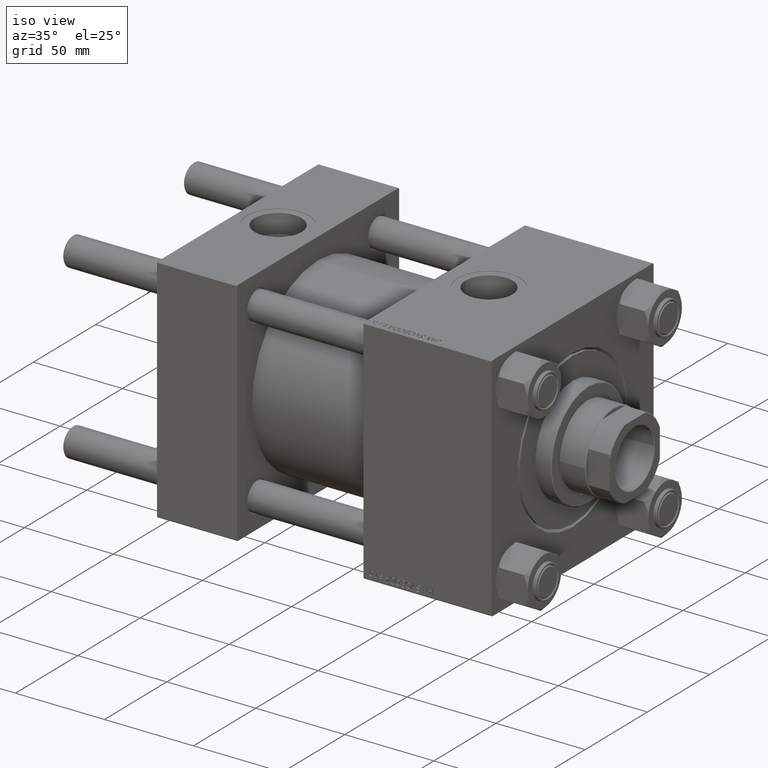
[diagram: clean part render]
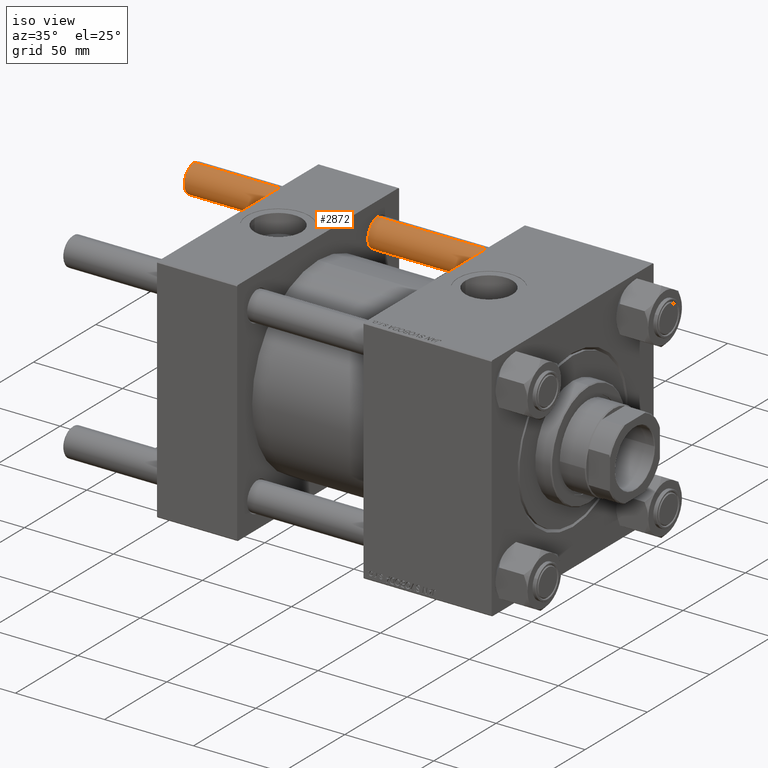
[diagram: same view with one face highlighted and labeled with its STEP entity id]
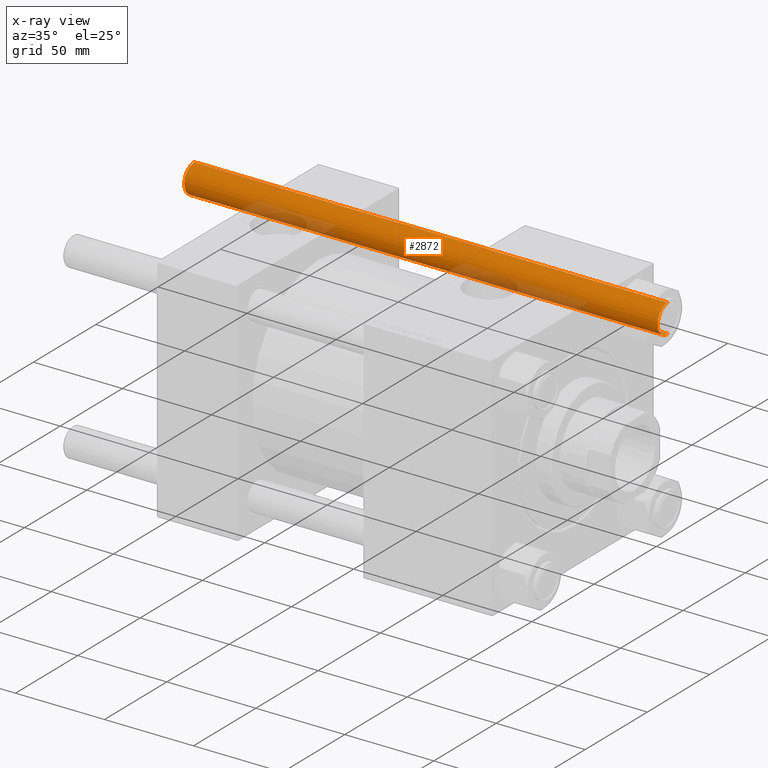
[diagram: x-ray of the same camera — body ghosted, the highlighted face saturated]
A machine part, iso view. The second image highlights one B-rep face of the part: STEP entity #2872.
The next image is the same camera in x-ray: the body ghosted, the highlighted face saturated — about 17% of this face is hidden behind the body in this view.
In plain terms, the highlighted cylindrical surface (edge-blend (fillet) strip) has radius 8 mm, axis along (-1, -0, -0).
Its self-contained STEP definition (entity closure, byte-faithful):
#1623 = CARTESIAN_POINT ( 'NONE',  ( 0.000000000000000000, 0.000000000000000000, 266.5000000000000568 ) ) ;
#1893 = VERTEX_POINT ( 'NONE', #17741 ) ;
#1976 = CARTESIAN_POINT ( 'NONE',  ( 0.000000000000000000, 0.000000000000000000, 267.0000000000000000 ) ) ;
#2479 = FACE_OUTER_BOUND ( 'NONE', #10780, .T. ) ;
#2661 = DIRECTION ( 'NONE',  ( -0.000000000000000000, -0.000000000000000000, -1.000000000000000000 ) ) ;
#2872 = ADVANCED_FACE ( 'NONE', ( #2479 ), #13384, .T. ) ;
#3278 = DIRECTION ( 'NONE',  ( -0.000000000000000000, -0.000000000000000000, 1.000000000000000000 ) ) ;
#3297 = DIRECTION ( 'NONE',  ( -0.000000000000000000, -0.000000000000000000, -1.000000000000000000 ) ) ;
#6220 = CARTESIAN_POINT ( 'NONE',  ( -8.000000000000000000, 0.000000000000000000, 267.0000000000000000 ) ) ;
#6495 = EDGE_CURVE ( 'NONE', #50005, #1893, #23499, .T. ) ;
#8410 = CARTESIAN_POINT ( 'NONE',  ( 8.000000000000000000, 9.797174393178825657E-16, 266.5000000000000568 ) ) ;
#10780 = EDGE_LOOP ( 'NONE', ( #36447, #21339, #38531, #42818 ) ) ;
#13384 = CYLINDRICAL_SURFACE ( 'NONE', #23359, 8.000000000000000000 ) ;
#15627 = EDGE_CURVE ( 'NONE', #41254, #1893, #15956, .T. ) ;
#15956 = LINE ( 'NONE', #46164, #30960 ) ;
#16062 = CARTESIAN_POINT ( 'NONE',  ( -8.000000000000000000, 0.000000000000000000, 0.5000000000000559552 ) ) ;
#16482 = VECTOR ( 'NONE', #2661, 1000.000000000000000 ) ;
#17441 = DIRECTION ( 'NONE',  ( -0.000000000000000000, -0.000000000000000000, -1.000000000000000000 ) ) ;
#17741 = CARTESIAN_POINT ( 'NONE',  ( 8.000000000000000000, 9.797174393178825657E-16, 0.5000000000000559552 ) ) ;
#20579 = VERTEX_POINT ( 'NONE', #39195 ) ;
#21143 = DIRECTION ( 'NONE',  ( 0.000000000000000000, 0.000000000000000000, -1.000000000000000000 ) ) ;
#21339 = ORIENTED_EDGE ( 'NONE', *, *, #34817, .T. ) ;
#21443 = AXIS2_PLACEMENT_3D ( 'NONE', #1623, #21143, #39938 ) ;
#23359 = AXIS2_PLACEMENT_3D ( 'NONE', #1976, #17441, #32921 ) ;
#23499 = CIRCLE ( 'NONE', #41349, 8.000000000000000000 ) ;
#25999 = LINE ( 'NONE', #6220, #16482 ) ;
#26605 = CARTESIAN_POINT ( 'NONE',  ( 0.000000000000000000, 0.000000000000000000, 0.5000000000000559552 ) ) ;
#29924 = DIRECTION ( 'NONE',  ( 1.000000000000000000, 0.000000000000000000, 0.000000000000000000 ) ) ;
#30960 = VECTOR ( 'NONE', #3297, 1000.000000000000000 ) ;
#31138 = CIRCLE ( 'NONE', #21443, 8.000000000000000000 ) ;
#32359 = EDGE_CURVE ( 'NONE', #20579, #50005, #25999, .T. ) ;
#32921 = DIRECTION ( 'NONE',  ( -1.000000000000000000, 0.000000000000000000, 0.000000000000000000 ) ) ;
#34817 = EDGE_CURVE ( 'NONE', #41254, #20579, #31138, .T. ) ;
#36447 = ORIENTED_EDGE ( 'NONE', *, *, #15627, .F. ) ;
#38531 = ORIENTED_EDGE ( 'NONE', *, *, #32359, .T. ) ;
#39195 = CARTESIAN_POINT ( 'NONE',  ( -8.000000000000000000, 0.000000000000000000, 266.5000000000000568 ) ) ;
#39938 = DIRECTION ( 'NONE',  ( 1.000000000000000000, 0.000000000000000000, 0.000000000000000000 ) ) ;
#41254 = VERTEX_POINT ( 'NONE', #8410 ) ;
#41349 = AXIS2_PLACEMENT_3D ( 'NONE', #26605, #3278, #29924 ) ;
#42818 = ORIENTED_EDGE ( 'NONE', *, *, #6495, .T. ) ;
#46164 = CARTESIAN_POINT ( 'NONE',  ( 8.000000000000000000, 9.797174393178825657E-16, 267.0000000000000000 ) ) ;
#50005 = VERTEX_POINT ( 'NONE', #16062 ) ;